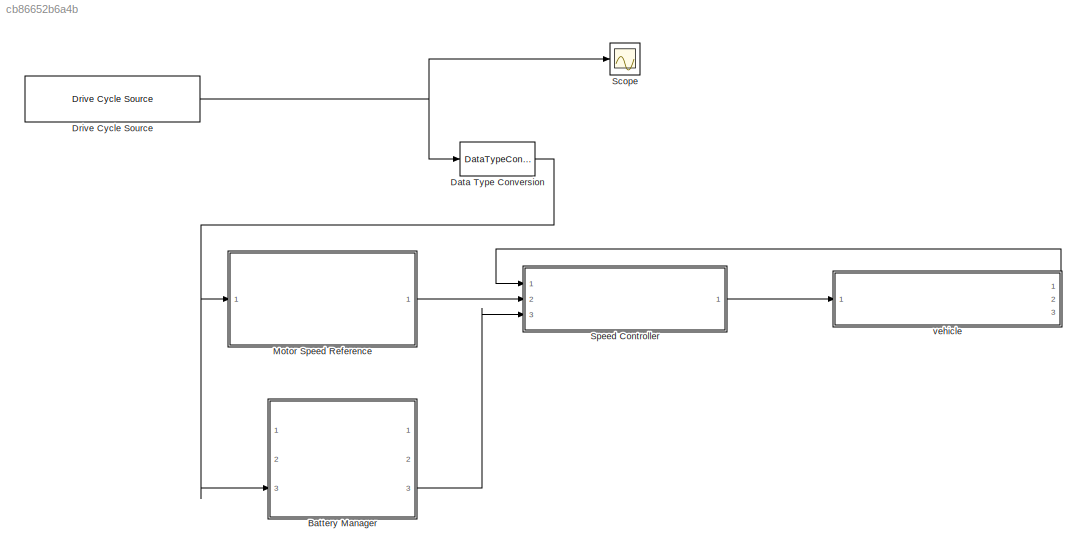
MODEL slx_cb86652b6a4b
KIND model
CONFIG AbsTol = auto
CONFIG EnableMultiTasking = off
CONFIG FixedStep = ContIntTime
CONFIG MaxStep = auto
CONFIG MinStep = auto
CONFIG RelTol = 1e-3
CONFIG SampleTimeConstraint = Unconstrained
CONFIG SolverName = ode14x
CONFIG StartTime = 0.0
CONFIG StopTime = 300
BLOCK [ModelReference] Battery Manager
  ModelNameDialog = battery_manager.slx
  ModelReferenceVersion = 1.25
  Ports = [3, 3]
BLOCK [DataTypeConversion] Data Type Conversion
  OutDataTypeStr = single
  RndMeth = Floor
  SaturateOnIntegerOverflow = off
BLOCK [Reference] Drive Cycle Source  REF=autolibshared/Drive Cycle Source
  AttributesFormatString = %<cycleVar> (%<tfinal>)
  Ports = [0, 1]
  SourceBlock = autolibshared/Drive Cycle Source
  SourceProductBaseCode = PW,MT,UV,VE,VP
  SourceType = Drive Cycle Source
BLOCK [ModelReference] Motor Speed Reference
  ModelNameDialog = motor_speed_reference.slx
  ModelReferenceVersion = 1.11
  Ports = [1, 1]
BLOCK [Scope] Scope
  Floating = off
  NumInputPorts = 1
  Ports = [1]
  ScopeSpecificationString = Simulink.scopes.TimeScopeBlockCfg('CurrentConfiguration', extmgr.ConfigurationSet(extmgr.Configuration('Core','General UI',true),extmgr.Configuration('Core','Source UI',true),extmgr.Configuration('Sources','WiredSimulink',true),extmgr.Configuration('Visuals','Time Domain',true,'SerializedDisplays',{struct('MinYLimReal','-10.34285','MaxYLimReal','93.08566','YLabelReal','','MinYLimMag','0.00000','Ma...<+1398ch>
BLOCK [ModelReference] Speed Controller
  ModelNameDialog = speed_controller.slx
  ModelReferenceVersion = 1.20
  Ports = [3, 1]
BLOCK [ModelReference] vehicle
  ModelNameDialog = vehicle.slx
  ModelReferenceVersion = 1.39
  Ports = [1, 3]
LINE Battery Manager:3 -> Speed Controller:3
NET Data Type Conversion:1 -> Battery Manager:3, Motor Speed Reference:1
NET Drive Cycle Source:1 -> Data Type Conversion:1, Scope:1
LINE Motor Speed Reference:1 -> Speed Controller:2
LINE Speed Controller:1 -> vehicle:1
LINE vehicle:1 -> Speed Controller:1
note: NET lines group one-source signal fan-out (src -> all destinations, sorted); 1:1 wires keep LINE
